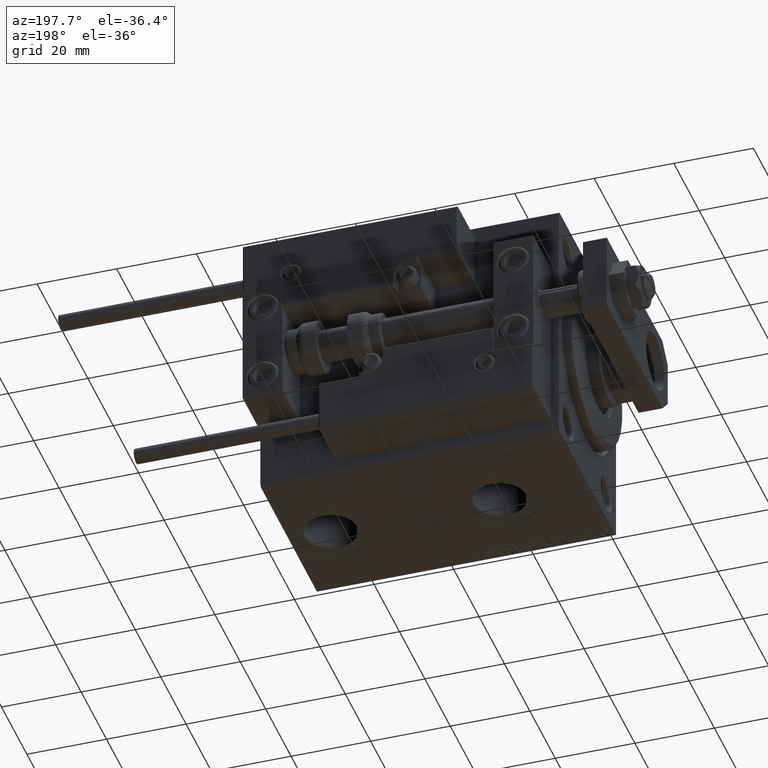
[diagram: clean part render]
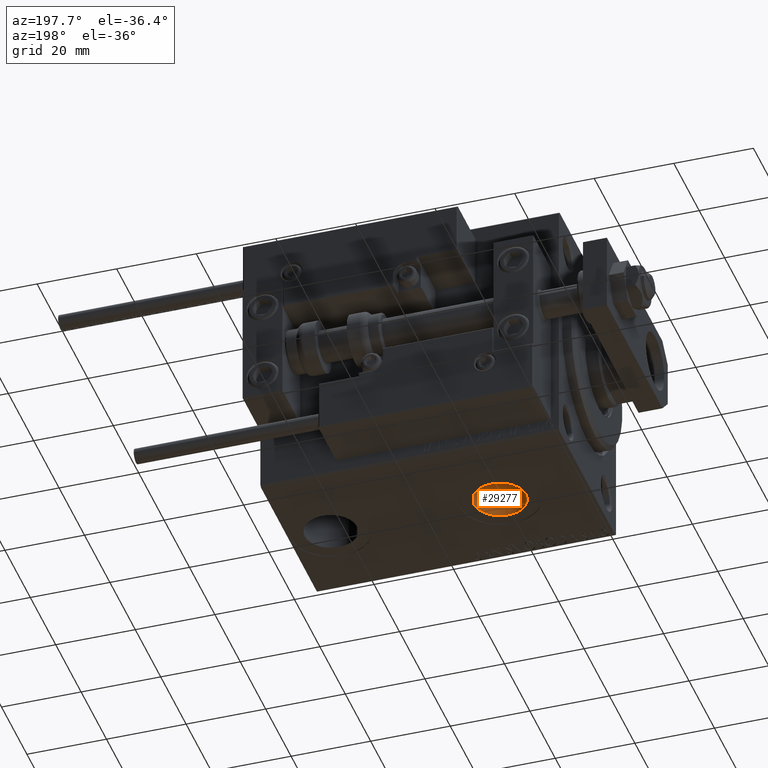
[diagram: same view with one face highlighted and labeled with its STEP entity id]
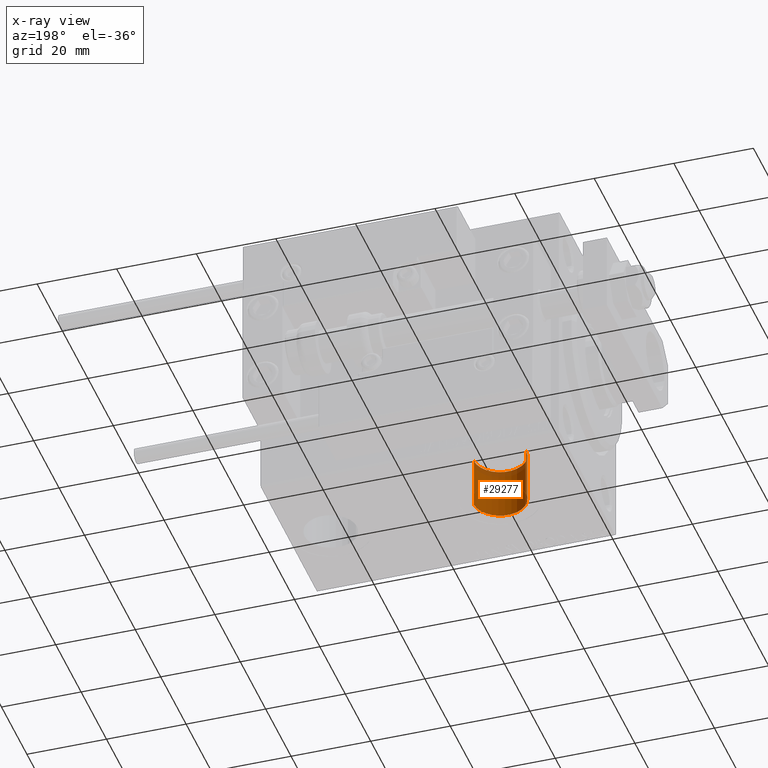
[diagram: x-ray of the same camera — body ghosted, the highlighted face saturated]
A machine part, auxiliary view. The second image highlights one B-rep face of the part: STEP entity #29277.
The next image is the same camera in x-ray: the body ghosted, the highlighted face saturated — about 12% of this face is hidden behind the body in this view.
In plain terms, the highlighted cylindrical surface (edge-blend (fillet) strip) has radius 6.58 mm, axis along (-0, -0, -1).
Its self-contained STEP definition (entity closure, byte-faithful):
#3114 = CARTESIAN_POINT ( 'NONE',  ( 28.58000000000000185, -2.104865637442060750E-15, -19.50000000000000355 ) ) ;
#5835 = VERTEX_POINT ( 'NONE', #17332 ) ;
#5838 = VERTEX_POINT ( 'NONE', #9875 ) ;
#5997 = VERTEX_POINT ( 'NONE', #51082 ) ;
#9041 = EDGE_CURVE ( 'NONE', #5997, #5838, #47111, .T. ) ;
#9830 = ORIENTED_EDGE ( 'NONE', *, *, #29317, .F. ) ;
#9875 = CARTESIAN_POINT ( 'NONE',  ( 15.41999999999999638, -2.910683231281019398E-15, -32.40000000000000568 ) ) ;
#9924 = AXIS2_PLACEMENT_3D ( 'NONE', #16967, #40663, #20443 ) ;
#12280 = LINE ( 'NONE', #20016, #21126 ) ;
#15319 = DIRECTION ( 'NONE',  ( -0.000000000000000000, -0.000000000000000000, -1.000000000000000000 ) ) ;
#15751 = DIRECTION ( 'NONE',  ( -0.000000000000000000, -0.000000000000000000, -1.000000000000000000 ) ) ;
#15920 = ORIENTED_EDGE ( 'NONE', *, *, #50188, .T. ) ;
#16967 = CARTESIAN_POINT ( 'NONE',  ( 22.00000000000000000, -2.910683231281019398E-15, -19.50000000000000355 ) ) ;
#17022 = ORIENTED_EDGE ( 'NONE', *, *, #9041, .T. ) ;
#17332 = CARTESIAN_POINT ( 'NONE',  ( 28.58000000000000185, -2.104865637442060750E-15, -19.50000000000000355 ) ) ;
#18260 = AXIS2_PLACEMENT_3D ( 'NONE', #50657, #33677, #38185 ) ;
#20016 = CARTESIAN_POINT ( 'NONE',  ( 15.41999999999999638, -2.910683231281019398E-15, -19.50000000000000355 ) ) ;
#20443 = DIRECTION ( 'NONE',  ( -1.000000000000000000, 0.000000000000000000, 0.000000000000000000 ) ) ;
#21126 = VECTOR ( 'NONE', #15751, 1000.000000000000000 ) ;
#21377 = EDGE_CURVE ( 'NONE', #5835, #21903, #25202, .T. ) ;
#21387 = CARTESIAN_POINT ( 'NONE',  ( 15.41999999999999638, -2.910683231281019398E-15, -19.50000000000000355 ) ) ;
#21903 = VERTEX_POINT ( 'NONE', #21387 ) ;
#22959 = FACE_OUTER_BOUND ( 'NONE', #29544, .T. ) ;
#23681 = AXIS2_PLACEMENT_3D ( 'NONE', #42904, #39718, #31736 ) ;
#25202 = CIRCLE ( 'NONE', #9924, 6.580000000000002736 ) ;
#27481 = CYLINDRICAL_SURFACE ( 'NONE', #23681, 6.580000000000002736 ) ;
#29277 = ADVANCED_FACE ( 'NONE', ( #22959 ), #27481, .F. ) ;
#29317 = EDGE_CURVE ( 'NONE', #21903, #5838, #12280, .T. ) ;
#29544 = EDGE_LOOP ( 'NONE', ( #31374, #15920, #17022, #9830 ) ) ;
#31033 = LINE ( 'NONE', #3114, #35210 ) ;
#31374 = ORIENTED_EDGE ( 'NONE', *, *, #21377, .F. ) ;
#31736 = DIRECTION ( 'NONE',  ( -1.000000000000000000, 0.000000000000000000, 0.000000000000000000 ) ) ;
#33677 = DIRECTION ( 'NONE',  ( 0.000000000000000000, 0.000000000000000000, -1.000000000000000000 ) ) ;
#35210 = VECTOR ( 'NONE', #15319, 1000.000000000000000 ) ;
#38185 = DIRECTION ( 'NONE',  ( -1.000000000000000000, 0.000000000000000000, 0.000000000000000000 ) ) ;
#39718 = DIRECTION ( 'NONE',  ( -0.000000000000000000, -0.000000000000000000, -1.000000000000000000 ) ) ;
#40663 = DIRECTION ( 'NONE',  ( 0.000000000000000000, 0.000000000000000000, -1.000000000000000000 ) ) ;
#42904 = CARTESIAN_POINT ( 'NONE',  ( 22.00000000000000000, -2.910683231281019398E-15, -19.50000000000000355 ) ) ;
#47111 = CIRCLE ( 'NONE', #18260, 6.580000000000002736 ) ;
#50188 = EDGE_CURVE ( 'NONE', #5835, #5997, #31033, .T. ) ;
#50657 = CARTESIAN_POINT ( 'NONE',  ( 22.00000000000000000, -2.910683231281019398E-15, -32.40000000000000568 ) ) ;
#51082 = CARTESIAN_POINT ( 'NONE',  ( 28.58000000000000185, -2.104865637442060750E-15, -32.40000000000000568 ) ) ;